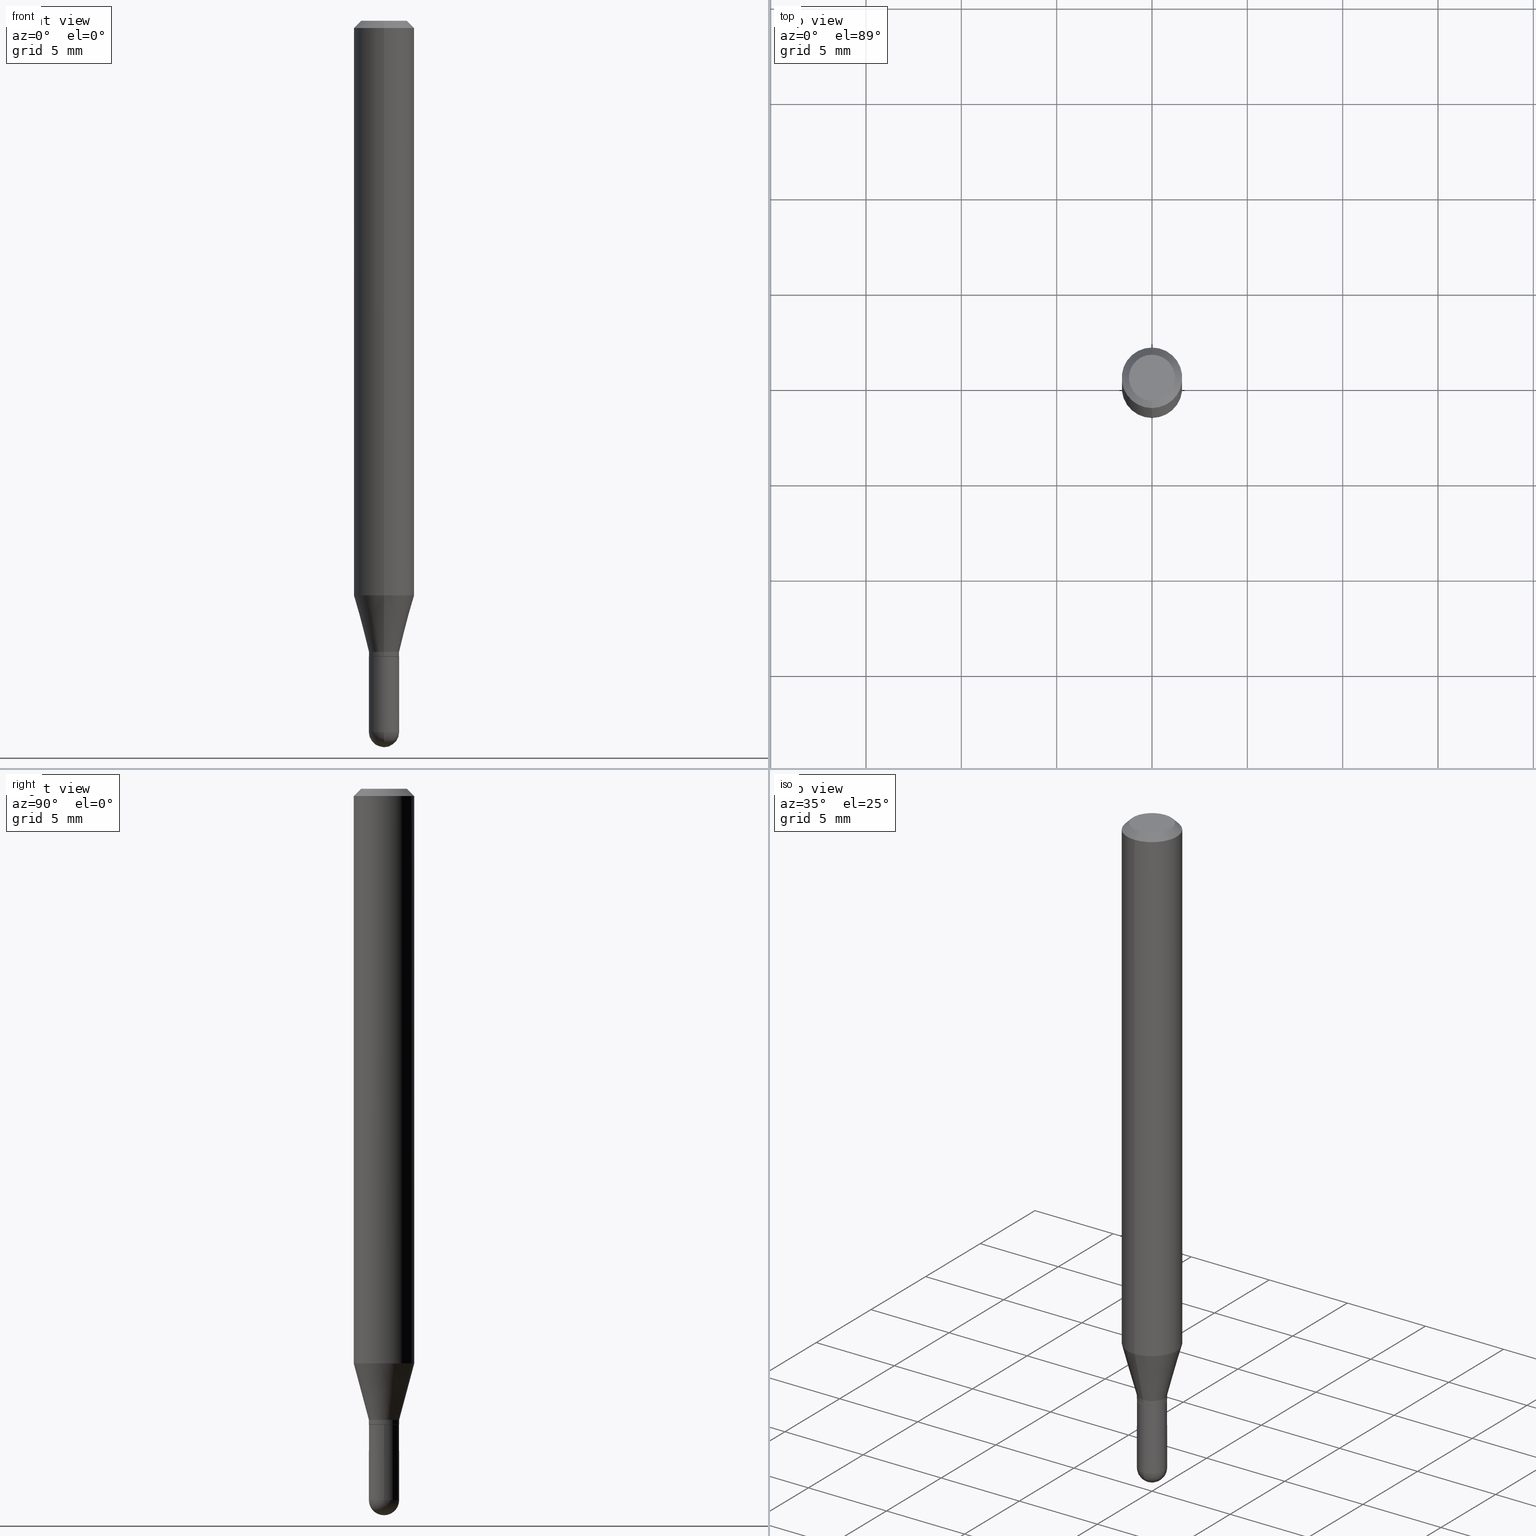
[diagram: canonical four-view strip — front | top / right | iso, engineering-drawing reading convention]
A machine part, canonical four-view strip (front | top / right | iso — engineering-drawing reading convention). The complete STEP part file that produces these views, byte-faithful:
ISO-10303-21;
HEADER;
FILE_DESCRIPTION (( 'STEP AP203' ),
    '1' );
FILE_NAME ('30308.STEP',
    '2024-03-08T15:20:37',
    ( '' ),
    ( '' ),
    'SwSTEP 2.0',
    'SolidWorks 2023',
    '' );
FILE_SCHEMA (( 'CONFIG_CONTROL_DESIGN' ));
ENDSEC;

DATA;
#1 = DIRECTION ( 'NONE',  ( -2.445427662834399299E-29, 3.491540258463135549E-15, 1.000000000000000000 ) ) ;
#2 = ORIENTED_EDGE ( 'NONE', *, *, #138, .T. ) ;
#3 = ADVANCED_FACE ( 'NONE', ( #203 ), #359, .T. ) ;
#4 = CIRCLE ( 'NONE', #437, 0.06250000000000000000 ) ;
#5 = ORIENTED_EDGE ( 'NONE', *, *, #396, .F. ) ;
#6 = FACE_OUTER_BOUND ( 'NONE', #481, .T. ) ;
#7 = ORIENTED_EDGE ( 'NONE', *, *, #31, .T. ) ;
#8 = CALENDAR_DATE ( 2024, 8, 3 ) ;
#9 = EDGE_CURVE ( 'NONE', #464, #53, #207, .T. ) ;
#10 = VERTEX_POINT ( 'NONE', #313 ) ;
#11 = AXIS2_PLACEMENT_3D ( 'NONE', #196, #462, #106 ) ;
#12 = CC_DESIGN_APPROVAL ( #99, ( #250 ) ) ;
#13 = DATE_TIME_ROLE ( 'classification_date' ) ;
#14 = EDGE_CURVE ( 'NONE', #29, #10, #225, .T. ) ;
#15 = ORIENTED_EDGE ( 'NONE', *, *, #91, .T. ) ;
#16 = DIRECTION ( 'NONE',  ( -6.982962677686265922E-15, -1.000000000000000000, 0.000000000000000000 ) ) ;
#17 = ORIENTED_EDGE ( 'NONE', *, *, #403, .F. ) ;
#18 = DIRECTION ( 'NONE',  ( -2.445427662834399299E-29, 3.491540258463135549E-15, 1.000000000000000000 ) ) ;
#19 = CLOSED_SHELL ( 'NONE', ( #247, #22, #280, #82, #283, #215, #357, #3, #169, #362, #241, #408 ) ) ;
#20 = CARTESIAN_POINT ( 'NONE',  ( 3.210900542521084585E-29, -4.584314997901050598E-15, -1.313000000000000167 ) ) ;
#21 = CARTESIAN_POINT ( 'NONE',  ( 3.589109914430733577E-29, -5.131940237673205338E-15, -1.468750000000000000 ) ) ;
#22 = ADVANCED_FACE ( 'NONE', ( #432 ), #436, .T. ) ;
#23 = CARTESIAN_POINT ( 'NONE',  ( 2.202682480856637938E-16, 0.03074999999999541295, -1.313000000000000389 ) ) ;
#24 = SHAPE_DEFINITION_REPRESENTATION ( #243, #114 ) ;
#25 = CARTESIAN_POINT ( 'NONE',  ( -2.182175836776658333E-16, -0.03125000000000488498, -1.312500000000000222 ) ) ;
#26 = APPLICATION_CONTEXT ( 'configuration controlled 3d designs of mechanical parts and assemblies' ) ;
#27 = AXIS2_PLACEMENT_3D ( 'NONE', #433, #273, #239 ) ;
#28 = DIRECTION ( 'NONE',  ( -2.445468806185136597E-29, 3.491481338843145583E-15, 1.000000000000000000 ) ) ;
#29 = VERTEX_POINT ( 'NONE', #151 ) ;
#30 = CARTESIAN_POINT ( 'NONE',  ( 3.840629472727450339E-16, 0.04750000000000004219, -5.999736927781643760E-16 ) ) ;
#31 = EDGE_CURVE ( 'NONE', #53, #464, #47, .T. ) ;
#32 = DIRECTION ( 'NONE',  ( -2.445427662834399299E-29, 3.491540258463135549E-15, 1.000000000000000000 ) ) ;
#33 = APPROVAL_STATUS ( 'not_yet_approved' ) ;
#34 = FACE_OUTER_BOUND ( 'NONE', #216, .T. ) ;
#35 = LINE ( 'NONE', #502, #113 ) ;
#36 = CARTESIAN_POINT ( 'NONE',  ( 0.000000000000000000, 0.000000000000000000, 0.000000000000000000 ) ) ;
#37 = CARTESIAN_POINT ( 'NONE',  ( 2.901190360800337940E-29, -4.142270530488200831E-15, -1.186373412263473703 ) ) ;
#38 = CARTESIAN_POINT ( 'NONE',  ( 1.061622581430208441E-44, -1.515766766971484424E-30, -4.341255305011652876E-16 ) ) ;
#39 = CIRCLE ( 'NONE', #331, 0.03125000000000019429 ) ;
#40 = AXIS2_PLACEMENT_3D ( 'NONE', #104, #407, #16 ) ;
#41 =( NAMED_UNIT ( * ) SI_UNIT ( $, .STERADIAN. ) SOLID_ANGLE_UNIT ( ) );
#42 = FACE_OUTER_BOUND ( 'NONE', #491, .T. ) ;
#43 = PERSON_AND_ORGANIZATION_ROLE ( 'design_owner' ) ;
#44 = DIRECTION ( 'NONE',  ( 7.105427357601001859E-15, 1.000000000000000000, 0.000000000000000000 ) ) ;
#45 = ORIENTED_EDGE ( 'NONE', *, *, #298, .F. ) ;
#46 = ADVANCED_FACE ( 'NONE', ( #42 ), #309, .T. ) ;
#47 = CIRCLE ( 'NONE', #508, 0.06250000000000001388 ) ;
#48 = LOCAL_TIME ( 10, 20, 37.00000000000000000, #364 ) ;
#49 = CC_DESIGN_PERSON_AND_ORGANIZATION_ASSIGNMENT ( #392, #74, ( #149 ) ) ;
#50 = EDGE_LOOP ( 'NONE', ( #17, #242, #171, #321 ) ) ;
#51 = VERTEX_POINT ( 'NONE', #420 ) ;
#52 = AXIS2_PLACEMENT_3D ( 'NONE', #418, #363, #447 ) ;
#53 = VERTEX_POINT ( 'NONE', #382 ) ;
#54 = FACE_OUTER_BOUND ( 'NONE', #136, .T. ) ;
#55 = EDGE_CURVE ( 'NONE', #347, #245, #131, .T. ) ;
#56 = VERTEX_POINT ( 'NONE', #346 ) ;
#57 = DIMENSIONAL_EXPONENTS ( 1.000000000000000000, 0.000000000000000000, 0.000000000000000000, 0.000000000000000000, 0.000000000000000000, 0.000000000000000000, 0.000000000000000000 ) ;
#58 = CARTESIAN_POINT ( 'NONE',  ( 3.591782309084418816E-29, -5.128113216425869865E-15, -1.468750000000000000 ) ) ;
#59 = VECTOR ( 'NONE', #120, 39.37007874015748143 ) ;
#60 = CC_DESIGN_PERSON_AND_ORGANIZATION_ASSIGNMENT ( #487, #170, ( #250 ) ) ;
#61 = CARTESIAN_POINT ( 'NONE',  ( 3.668141494251704677E-31, -5.237310387694854119E-17, -0.01500000000000043313 ) ) ;
#62 = DIRECTION ( 'NONE',  ( -2.445427662834399299E-29, 3.491540258463135549E-15, 1.000000000000000000 ) ) ;
#63 = DIRECTION ( 'NONE',  ( 1.000000000000000000, -6.982962677686266711E-15, 4.876176775795935793E-29 ) ) ;
#64 = ORIENTED_EDGE ( 'NONE', *, *, #210, .F. ) ;
#65 = EDGE_CURVE ( 'NONE', #282, #29, #39, .T. ) ;
#66 = AXIS2_PLACEMENT_3D ( 'NONE', #511, #1, #150 ) ;
#67 = CALENDAR_DATE ( 2024, 8, 3 ) ;
#68 = LOCAL_TIME ( 10, 20, 37.00000000000000000, #199 ) ;
#69 = DIRECTION ( 'NONE',  ( 4.937700262164543309E-15, 0.7071067811865444641, -0.7071067811865505703 ) ) ;
#70 = DIRECTION ( 'NONE',  ( 1.000000000000000000, -6.982962677686261189E-15, 0.000000000000000000 ) ) ;
#71 = DIRECTION ( 'NONE',  ( -6.982962677686265133E-15, -1.000000000000000000, 3.491540258463135155E-15 ) ) ;
#72 = FACE_OUTER_BOUND ( 'NONE', #258, .T. ) ;
#73 = ORIENTED_EDGE ( 'NONE', *, *, #369, .T. ) ;
#74 = PERSON_AND_ORGANIZATION_ROLE ( 'design_supplier' ) ;
#75 = ORIENTED_EDGE ( 'NONE', *, *, #316, .T. ) ;
#76 = CIRCLE ( 'NONE', #211, 0.03125000000000019429 ) ;
#77 = EDGE_CURVE ( 'NONE', #324, #53, #115, .T. ) ;
#78 = ORIENTED_EDGE ( 'NONE', *, *, #206, .F. ) ;
#79 = ORIENTED_EDGE ( 'NONE', *, *, #452, .T. ) ;
#80 = DATE_AND_TIME ( #121, #194 ) ;
#81 = ORIENTED_EDGE ( 'NONE', *, *, #304, .F. ) ;
#82 = ADVANCED_FACE ( 'NONE', ( #315 ), #155, .T. ) ;
#83 = ORIENTED_EDGE ( 'NONE', *, *, #31, .F. ) ;
#84 = AXIS2_PLACEMENT_3D ( 'NONE', #474, #306, #123 ) ;
#85 = DIRECTION ( 'NONE',  ( -6.982962677686265922E-15, -1.000000000000000000, 0.000000000000000000 ) ) ;
#86 = AXIS2_PLACEMENT_3D ( 'NONE', #109, #303, #465 ) ;
#87 = ORIENTED_EDGE ( 'NONE', *, *, #497, .F. ) ;
#88 = APPROVAL_ROLE ( '' ) ;
#89 = CARTESIAN_POINT ( 'NONE',  ( 2.220446049250639965E-16, 0.03124999999999550360, -1.312500000000000222 ) ) ;
#90 = ORIENTED_EDGE ( 'NONE', *, *, #260, .F. ) ;
#91 = EDGE_CURVE ( 'NONE', #51, #287, #308, .T. ) ;
#92 = EDGE_LOOP ( 'NONE', ( #383, #484, #7, #87 ) ) ;
#93 = CARTESIAN_POINT ( 'NONE',  ( 4.440892098500626162E-16, 0.06250000000000001388, -2.182212661539459965E-16 ) ) ;
#94 = CC_DESIGN_APPROVAL ( #105, ( #461 ) ) ;
#95 = DIRECTION ( 'NONE',  ( 1.000000000000000000, -6.982962677686265922E-15, 4.883557194083112901E-29 ) ) ;
#96 = DIRECTION ( 'NONE',  ( -2.445468806185136877E-29, 3.491481338843145188E-15, 1.000000000000000000 ) ) ;
#97 = DIRECTION ( 'NONE',  ( -2.445427662834399299E-29, 3.491540258463135549E-15, 1.000000000000000000 ) ) ;
#98 = VERTEX_POINT ( 'NONE', #386 ) ;
#99 = APPROVAL ( #175, 'UNSPECIFIED' ) ;
#100 = DIRECTION ( 'NONE',  ( 2.445427662834399019E-29, -3.491540258463135549E-15, -1.000000000000000000 ) ) ;
#101 = VECTOR ( 'NONE', #18, 39.37007874015748143 ) ;
#102 = CIRCLE ( 'NONE', #285, 0.03125000000000000000 ) ;
#103 = ORGANIZATION ( 'UNSPECIFIED', 'UNSPECIFIED', '' ) ;
#104 = CARTESIAN_POINT ( 'NONE',  ( 3.209623807470149448E-29, -4.582646589232866148E-15, -1.312500000000000222 ) ) ;
#105 = APPROVAL ( #117, 'UNSPECIFIED' ) ;
#106 = DIRECTION ( 'NONE',  ( -6.982962677686265922E-15, -1.000000000000000000, 0.000000000000000000 ) ) ;
#107 = CARTESIAN_POINT ( 'NONE',  ( 3.668141494251704677E-31, -5.237310387694854119E-17, -0.01500000000000043313 ) ) ;
#108 = CYLINDRICAL_SURFACE ( 'NONE', #159, 0.06250000000000001388 ) ;
#109 = CARTESIAN_POINT ( 'NONE',  ( 3.210846521301567025E-29, -4.584392359362098575E-15, -1.313000000000000389 ) ) ;
#110 = COORDINATED_UNIVERSAL_TIME_OFFSET ( 5, 0, .BEHIND. ) ;
#111 = ORIENTED_EDGE ( 'NONE', *, *, #14, .F. ) ;
#112 = ORIENTED_EDGE ( 'NONE', *, *, #505, .F. ) ;
#113 = VECTOR ( 'NONE', #62, 39.37007874015748143 ) ;
#114 = ADVANCED_BREP_SHAPE_REPRESENTATION ( '30308', ( #337, #507, #186 ), #341 ) ;
#115 = LINE ( 'NONE', #467, #393 ) ;
#116 = FACE_OUTER_BOUND ( 'NONE', #486, .T. ) ;
#117 = APPROVAL_STATUS ( 'not_yet_approved' ) ;
#118 = DIRECTION ( 'NONE',  ( -6.982962677686265922E-15, -1.000000000000000000, 0.000000000000000000 ) ) ;
#119 = ADVANCED_FACE ( 'NONE', ( #34 ), #492, .T. ) ;
#120 = DIRECTION ( 'NONE',  ( -2.445468806185136877E-29, 3.491481338843145188E-15, 1.000000000000000000 ) ) ;
#121 = CALENDAR_DATE ( 2024, 8, 3 ) ;
#122 = DIRECTION ( 'NONE',  ( 1.000000000000000000, -7.105427357601001070E-15, 4.926315508542082329E-29 ) ) ;
#123 = DIRECTION ( 'NONE',  ( -6.982962677686265133E-15, -1.000000000000000000, 3.491540258463135155E-15 ) ) ;
#124 = DIRECTION ( 'NONE',  ( -4.937700262164674260E-15, -0.7071067811865632269, 0.7071067811865319186 ) ) ;
#125 = PLANE ( 'NONE',  #352 ) ;
#126 = EDGE_CURVE ( 'NONE', #10, #464, #146, .T. ) ;
#127 = EDGE_LOOP ( 'NONE', ( #493, #284, #397, #438 ) ) ;
#128 = EDGE_LOOP ( 'NONE', ( #180, #322, #187, #248 ) ) ;
#129 = CARTESIAN_POINT ( 'NONE',  ( 3.186392244673222782E-29, -4.549476956777466596E-15, -1.302999999999999936 ) ) ;
#130 = EDGE_LOOP ( 'NONE', ( #79, #2, #444, #174 ) ) ;
#131 = CIRCLE ( 'NONE', #379, 0.03125000000000000694 ) ;
#132 = LINE ( 'NONE', #445, #398 ) ;
#133 = CIRCLE ( 'NONE', #411, 0.04750000000000004219 ) ;
#134 = VERTEX_POINT ( 'NONE', #139 ) ;
#135 = CARTESIAN_POINT ( 'NONE',  ( 0.03125000000000000694, -5.074431690841155672E-15, -1.468750000000000000 ) ) ;
#136 = EDGE_LOOP ( 'NONE', ( #326, #440 ) ) ;
#137 = ORIENTED_EDGE ( 'NONE', *, *, #55, .F. ) ;
#138 = EDGE_CURVE ( 'NONE', #366, #293, #329, .T. ) ;
#139 = CARTESIAN_POINT ( 'NONE',  ( -2.147261023388205582E-16, -0.03075000000000458270, -1.313000000000000389 ) ) ;
#140 = CC_DESIGN_APPROVAL ( #471, ( #149 ) ) ;
#141 = FACE_OUTER_BOUND ( 'NONE', #50, .T. ) ;
#142 = ORIENTED_EDGE ( 'NONE', *, *, #271, .T. ) ;
#143 = CC_DESIGN_DATE_AND_TIME_ASSIGNMENT ( #424, #312, ( #461 ) ) ;
#144 = ORIENTED_EDGE ( 'NONE', *, *, #224, .T. ) ;
#145 = LINE ( 'NONE', #181, #168 ) ;
#146 = LINE ( 'NONE', #93, #101 ) ;
#147 = EDGE_LOOP ( 'NONE', ( #358, #296, #83, #402 ) ) ;
#148 = AXIS2_PLACEMENT_3D ( 'NONE', #253, #222, #289 ) ;
#149 = PRODUCT_DEFINITION_FORMATION_WITH_SPECIFIED_SOURCE ( 'ANY', '', #480, .NOT_KNOWN. ) ;
#150 = DIRECTION ( 'NONE',  ( -6.982962677686265922E-15, -1.000000000000000000, 3.491540258463135549E-15 ) ) ;
#151 = CARTESIAN_POINT ( 'NONE',  ( 3.330669073875781221E-16, 0.03124999999999564237, -1.302999999999999936 ) ) ;
#152 = DIRECTION ( 'NONE',  ( -6.982962677686265133E-15, -1.000000000000000000, 3.491540258463135155E-15 ) ) ;
#153 = DIRECTION ( 'NONE',  ( -6.982962677686265922E-15, -1.000000000000000000, 4.370956789862821150E-15 ) ) ;
#154 = EDGE_CURVE ( 'NONE', #209, #293, #458, .T. ) ;
#155 = CYLINDRICAL_SURFACE ( 'NONE', #84, 0.06250000000000001388 ) ;
#156 = CARTESIAN_POINT ( 'NONE',  ( 0.000000000000000000, 0.000000000000000000, 0.000000000000000000 ) ) ;
#157 = PERSON_AND_ORGANIZATION ( #189, #103 ) ;
#158 = CARTESIAN_POINT ( 'NONE',  ( 3.210846521301567025E-29, -4.584392359362098575E-15, -1.313000000000000389 ) ) ;
#159 = AXIS2_PLACEMENT_3D ( 'NONE', #226, #413, #152 ) ;
#160 = MECHANICAL_CONTEXT ( 'NONE', #302, 'mechanical' ) ;
#161 = DIRECTION ( 'NONE',  ( -6.982962677686265922E-15, -1.000000000000000000, 4.370956789862821150E-15 ) ) ;
#162 = DIRECTION ( 'NONE',  ( -6.982962677686265922E-15, -1.000000000000000000, 3.483106191921934765E-15 ) ) ;
#163 = CC_DESIGN_PERSON_AND_ORGANIZATION_ASSIGNMENT ( #157, #274, ( #149 ) ) ;
#164 = CARTESIAN_POINT ( 'NONE',  ( 3.589109914430733577E-29, -5.131940237673205338E-15, -1.468750000000000000 ) ) ;
#165 = DIRECTION ( 'NONE',  ( -2.445427662834399299E-29, 3.491540258463135549E-15, 1.000000000000000000 ) ) ;
#166 = CARTESIAN_POINT ( 'NONE',  ( -0.03125000000000000000, 2.220446049250313081E-16, -1.537167215704658057E-30 ) ) ;
#167 = APPLICATION_PROTOCOL_DEFINITION ( 'international standard', 'config_control_design', 1994, #302 ) ;
#168 = VECTOR ( 'NONE', #217, 39.37007874015749564 ) ;
#169 = ADVANCED_FACE ( 'NONE', ( #54 ), #459, .F. ) ;
#170 = PERSON_AND_ORGANIZATION_ROLE ( 'classification_officer' ) ;
#171 = ORIENTED_EDGE ( 'NONE', *, *, #224, .F. ) ;
#172 = ORIENTED_EDGE ( 'NONE', *, *, #206, .T. ) ;
#173 = ORIENTED_EDGE ( 'NONE', *, *, #298, .T. ) ;
#174 = ORIENTED_EDGE ( 'NONE', *, *, #369, .F. ) ;
#175 = APPROVAL_STATUS ( 'not_yet_approved' ) ;
#176 = VECTOR ( 'NONE', #453, 39.37007874015748143 ) ;
#177 = DIRECTION ( 'NONE',  ( -2.445427662834399299E-29, 3.491540258463135549E-15, 1.000000000000000000 ) ) ;
#178 = CONICAL_SURFACE ( 'NONE', #360, 0.03074999999999999956, 0.7853981633974739252 ) ;
#179 = EDGE_CURVE ( 'NONE', #245, #51, #325, .T. ) ;
#180 = ORIENTED_EDGE ( 'NONE', *, *, #327, .F. ) ;
#181 = CARTESIAN_POINT ( 'NONE',  ( -2.182175836776652910E-16, -0.03125000000000474620, -1.302999999999999936 ) ) ;
#182 = ORIENTED_EDGE ( 'NONE', *, *, #304, .T. ) ;
#183 = EDGE_CURVE ( 'NONE', #371, #98, #499, .T. ) ;
#184 = AXIS2_PLACEMENT_3D ( 'NONE', #263, #28, #63 ) ;
#185 = AXIS2_PLACEMENT_3D ( 'NONE', #156, #417, #227 ) ;
#186 = AXIS2_PLACEMENT_3D ( 'NONE', #36, #305, #473 ) ;
#187 = ORIENTED_EDGE ( 'NONE', *, *, #497, .T. ) ;
#188 = PLANE ( 'NONE',  #220 ) ;
#189 = PERSON ( 'UNSPECIFIED', 'UNSPECIFIED', 'UNSPECIFIED', ('UNSPECIFIED'), ('UNSPECIFIED'), ('UNSPECIFIED') ) ;
#190 = DIRECTION ( 'NONE',  ( 1.000000000000000000, -6.982962677686261189E-15, 0.000000000000000000 ) ) ;
#191 = VECTOR ( 'NONE', #501, 39.37007874015747433 ) ;
#192 = CARTESIAN_POINT ( 'NONE',  ( 3.668141494251704677E-31, -5.237310387694854119E-17, -0.01500000000000043313 ) ) ;
#193 = VECTOR ( 'NONE', #328, 39.37007874015748143 ) ;
#194 = LOCAL_TIME ( 10, 20, 37.00000000000000000, #110 ) ;
#195 = CARTESIAN_POINT ( 'NONE',  ( 2.901190360800337940E-29, -4.142270530488200831E-15, -1.186373412263473703 ) ) ;
#196 = CARTESIAN_POINT ( 'NONE',  ( 3.186392244673222782E-29, -4.549476956777466596E-15, -1.302999999999999936 ) ) ;
#197 = DIRECTION ( 'NONE',  ( 1.000000000000000000, -6.982962677686261189E-15, 0.000000000000000000 ) ) ;
#198 = EDGE_LOOP ( 'NONE', ( #448, #264, #15, #173, #78 ) ) ;
#199 = COORDINATED_UNIVERSAL_TIME_OFFSET ( 5, 0, .BEHIND. ) ;
#200 = CARTESIAN_POINT ( 'NONE',  ( 3.210846521301567025E-29, -4.584392359362098575E-15, -1.313000000000000389 ) ) ;
#201 = ADVANCED_FACE ( 'NONE', ( #415 ), #291, .T. ) ;
#202 = PERSON_AND_ORGANIZATION_ROLE ( 'creator' ) ;
#203 = FACE_OUTER_BOUND ( 'NONE', #128, .T. ) ;
#204 =( LENGTH_UNIT ( ) NAMED_UNIT ( * ) SI_UNIT ( $, .METRE. ) );
#205 = CARTESIAN_POINT ( 'NONE',  ( 3.591782309084418816E-29, -5.128113216425869865E-15, -1.468750000000000000 ) ) ;
#206 = EDGE_CURVE ( 'NONE', #400, #412, #102, .T. ) ;
#207 = CIRCLE ( 'NONE', #268, 0.06250000000000001388 ) ;
#208 = VECTOR ( 'NONE', #124, 39.37007874015748143 ) ;
#209 = VERTEX_POINT ( 'NONE', #25 ) ;
#210 = EDGE_CURVE ( 'NONE', #293, #209, #509, .T. ) ;
#211 = AXIS2_PLACEMENT_3D ( 'NONE', #164, #122, #44 ) ;
#212 = AXIS2_PLACEMENT_3D ( 'NONE', #384, #32, #236 ) ;
#213 = CARTESIAN_POINT ( 'NONE',  ( 2.220446049250326886E-16, 0.03125000000000019429, -1.091106330769736638E-16 ) ) ;
#214 = CARTESIAN_POINT ( 'NONE',  ( 1.061622581430208441E-44, -1.515766766971484424E-30, -4.341255305011652876E-16 ) ) ;
#215 = ADVANCED_FACE ( 'NONE', ( #261 ), #290, .T. ) ;
#216 = EDGE_LOOP ( 'NONE', ( #90, #421, #318, #137 ) ) ;
#217 = DIRECTION ( 'NONE',  ( -1.807323732225328562E-15, -0.2588190451025179639, 0.9659258262890689783 ) ) ;
#218 = CARTESIAN_POINT ( 'NONE',  ( 0.000000000000000000, 0.000000000000000000, 0.000000000000000000 ) ) ;
#219 = ORIENTED_EDGE ( 'NONE', *, *, #391, .T. ) ;
#220 = AXIS2_PLACEMENT_3D ( 'NONE', #336, #410, #221 ) ;
#221 = DIRECTION ( 'NONE',  ( -6.982962677686265922E-15, -1.000000000000000000, 3.491540258463135549E-15 ) ) ;
#222 = DIRECTION ( 'NONE',  ( -2.445427662834399299E-29, 3.491540258463135549E-15, 1.000000000000000000 ) ) ;
#223 = DIRECTION ( 'NONE',  ( 1.000000000000000000, -6.982962677686266711E-15, 4.876176775795935793E-29 ) ) ;
#224 = EDGE_CURVE ( 'NONE', #287, #347, #332, .T. ) ;
#225 = LINE ( 'NONE', #343, #191 ) ;
#226 = CARTESIAN_POINT ( 'NONE',  ( 0.000000000000000000, 0.000000000000000000, 0.000000000000000000 ) ) ;
#227 = DIRECTION ( 'NONE',  ( -6.982962677686265922E-15, -1.000000000000000000, 3.491540258463135549E-15 ) ) ;
#228 = DIRECTION ( 'NONE',  ( 2.438088387897960049E-29, -3.491481338843145188E-15, -1.000000000000000000 ) ) ;
#229 = CARTESIAN_POINT ( 'NONE',  ( 3.186392244673222782E-29, -4.549476956777466596E-15, -1.302999999999999936 ) ) ;
#230 = ORIENTED_EDGE ( 'NONE', *, *, #154, .T. ) ;
#231 = CC_DESIGN_PERSON_AND_ORGANIZATION_ASSIGNMENT ( #510, #202, ( #461 ) ) ;
#232 = CYLINDRICAL_SURFACE ( 'NONE', #185, 0.03125000000000019429 ) ;
#233 = PERSON_AND_ORGANIZATION ( #189, #103 ) ;
#234 = CYLINDRICAL_SURFACE ( 'NONE', #66, 0.03125000000000019429 ) ;
#235 = DIRECTION ( 'NONE',  ( 6.982962677686265922E-15, 1.000000000000000000, -3.483106191921934765E-15 ) ) ;
#236 = DIRECTION ( 'NONE',  ( -6.982962677686265922E-15, -1.000000000000000000, 0.000000000000000000 ) ) ;
#237 = DATE_AND_TIME ( #349, #68 ) ;
#238 = DIRECTION ( 'NONE',  ( -6.982962677686265922E-15, -1.000000000000000000, 3.483106191921934765E-15 ) ) ;
#239 = DIRECTION ( 'NONE',  ( 1.000000000000000000, -6.982962677686262766E-15, 0.000000000000000000 ) ) ;
#240 = COORDINATED_UNIVERSAL_TIME_OFFSET ( 5, 0, .BEHIND. ) ;
#241 = ADVANCED_FACE ( 'NONE', ( #275 ), #178, .T. ) ;
#242 = ORIENTED_EDGE ( 'NONE', *, *, #260, .T. ) ;
#243 = PRODUCT_DEFINITION_SHAPE ( 'NONE', 'NONE',  #461 ) ;
#244 = AXIS2_PLACEMENT_3D ( 'NONE', #195, #429, #153 ) ;
#245 = VERTEX_POINT ( 'NONE', #355 ) ;
#246 = ORIENTED_EDGE ( 'NONE', *, *, #505, .T. ) ;
#247 = ADVANCED_FACE ( 'NONE', ( #72 ), #234, .T. ) ;
#248 = ORIENTED_EDGE ( 'NONE', *, *, #9, .T. ) ;
#249 = CIRCLE ( 'NONE', #27, 0.03125000000000000000 ) ;
#250 = SECURITY_CLASSIFICATION ( '', '', #430 ) ;
#251 = EDGE_CURVE ( 'NONE', #324, #10, #4, .T. ) ;
#252 = CARTESIAN_POINT ( 'NONE',  ( 3.589109914430733577E-29, -5.131940237673205338E-15, -1.468750000000000000 ) ) ;
#253 = CARTESIAN_POINT ( 'NONE',  ( 3.186392244673222782E-29, -4.549476956777466596E-15, -1.302999999999999936 ) ) ;
#254 = ORIENTED_EDGE ( 'NONE', *, *, #452, .F. ) ;
#255 = FACE_OUTER_BOUND ( 'NONE', #127, .T. ) ;
#256 = AXIS2_PLACEMENT_3D ( 'NONE', #295, #257, #190 ) ;
#257 = DIRECTION ( 'NONE',  ( -2.445468806185136597E-29, 3.491481338843145583E-15, 1.000000000000000000 ) ) ;
#258 = EDGE_LOOP ( 'NONE', ( #230, #75, #319, #387 ) ) ;
#259 = DATE_AND_TIME ( #67, #425 ) ;
#260 = EDGE_CURVE ( 'NONE', #56, #347, #76, .T. ) ;
#261 = FACE_OUTER_BOUND ( 'NONE', #441, .T. ) ;
#262 = FACE_OUTER_BOUND ( 'NONE', #92, .T. ) ;
#263 = CARTESIAN_POINT ( 'NONE',  ( 0.000000000000000000, 0.000000000000000000, 0.000000000000000000 ) ) ;
#264 = ORIENTED_EDGE ( 'NONE', *, *, #179, .T. ) ;
#265 = CARTESIAN_POINT ( 'NONE',  ( 4.440892098500919026E-16, 0.06249999999999997224, -0.01500000000000065170 ) ) ;
#266 = CALENDAR_DATE ( 2024, 8, 3 ) ;
#267 = DIRECTION ( 'NONE',  ( -6.982962677686265922E-15, -1.000000000000000000, 0.000000000000000000 ) ) ;
#268 = AXIS2_PLACEMENT_3D ( 'NONE', #192, #276, #162 ) ;
#269 = CARTESIAN_POINT ( 'NONE',  ( 3.591782309084418816E-29, -5.128113216425869865E-15, -1.468750000000000000 ) ) ;
#270 = AXIS2_PLACEMENT_3D ( 'NONE', #58, #375, #278 ) ;
#271 = EDGE_CURVE ( 'NONE', #29, #282, #279, .T. ) ;
#272 = DIRECTION ( 'NONE',  ( -6.982962677686265922E-15, -1.000000000000000000, 0.000000000000000000 ) ) ;
#273 = DIRECTION ( 'NONE',  ( -2.445468806185136597E-29, 3.491481338843145583E-15, 1.000000000000000000 ) ) ;
#274 = PERSON_AND_ORGANIZATION_ROLE ( 'creator' ) ;
#275 = FACE_OUTER_BOUND ( 'NONE', #450, .T. ) ;
#276 = DIRECTION ( 'NONE',  ( -2.445427662834399299E-29, 3.491540258463135549E-15, 1.000000000000000000 ) ) ;
#277 = APPROVAL_DATE_TIME ( #80, #105 ) ;
#278 = DIRECTION ( 'NONE',  ( 1.000000000000000000, -6.982962677686261189E-15, 0.000000000000000000 ) ) ;
#279 = CIRCLE ( 'NONE', #11, 0.03125000000000019429 ) ;
#280 = ADVANCED_FACE ( 'NONE', ( #262 ), #490, .T. ) ;
#281 = EDGE_LOOP ( 'NONE', ( #254, #112 ) ) ;
#282 = VERTEX_POINT ( 'NONE', #365 ) ;
#283 = ADVANCED_FACE ( 'NONE', ( #6 ), #340, .T. ) ;
#284 = ORIENTED_EDGE ( 'NONE', *, *, #446, .T. ) ;
#285 = AXIS2_PLACEMENT_3D ( 'NONE', #20, #455, #292 ) ;
#286 = ORIENTED_EDGE ( 'NONE', *, *, #271, .F. ) ;
#287 = VERTEX_POINT ( 'NONE', #135 ) ;
#288 = PERSON_AND_ORGANIZATION ( #189, #103 ) ;
#289 = DIRECTION ( 'NONE',  ( -6.982962677686265922E-15, -1.000000000000000000, 0.000000000000000000 ) ) ;
#290 = CONICAL_SURFACE ( 'NONE', #148, 0.03125000000000019429, 0.2617993877991501295 ) ;
#291 = CYLINDRICAL_SURFACE ( 'NONE', #443, 0.03125000000000000000 ) ;
#292 = DIRECTION ( 'NONE',  ( 1.000000000000000000, -6.982962677686262766E-15, 0.000000000000000000 ) ) ;
#293 = VERTEX_POINT ( 'NONE', #89 ) ;
#294 = LINE ( 'NONE', #339, #476 ) ;
#295 = CARTESIAN_POINT ( 'NONE',  ( 3.591782309084418816E-29, -5.128113216425869865E-15, -1.468750000000000000 ) ) ;
#296 = ORIENTED_EDGE ( 'NONE', *, *, #126, .T. ) ;
#297 = SPHERICAL_SURFACE ( 'NONE', #423, 0.03125000000000019429 ) ;
#298 = EDGE_CURVE ( 'NONE', #287, #412, #132, .T. ) ;
#299 = AXIS2_PLACEMENT_3D ( 'NONE', #342, #97, #500 ) ;
#300 = DESIGN_CONTEXT ( 'detailed design', #26, 'design' ) ;
#301 = ORIENTED_EDGE ( 'NONE', *, *, #396, .T. ) ;
#302 = APPLICATION_CONTEXT ( 'configuration controlled 3d designs of mechanical parts and assemblies' ) ;
#303 = DIRECTION ( 'NONE',  ( -2.445427662834399299E-29, 3.491540258463135549E-15, 1.000000000000000000 ) ) ;
#304 = EDGE_CURVE ( 'NONE', #282, #324, #145, .T. ) ;
#305 = DIRECTION ( 'NONE',  ( 0.000000000000000000, 0.000000000000000000, 1.000000000000000000 ) ) ;
#306 = DIRECTION ( 'NONE',  ( -2.445427662834399299E-29, 3.491540258463135549E-15, 1.000000000000000000 ) ) ;
#307 = LINE ( 'NONE', #422, #485 ) ;
#308 = CIRCLE ( 'NONE', #442, 0.03125000000000000694 ) ;
#309 = CYLINDRICAL_SURFACE ( 'NONE', #184, 0.03125000000000000000 ) ;
#310 = CIRCLE ( 'NONE', #86, 0.03074999999999999956 ) ;
#311 =( CONVERSION_BASED_UNIT ( 'INCH', #350 ) LENGTH_UNIT ( ) NAMED_UNIT ( #57 ) );
#312 = DATE_TIME_ROLE ( 'creation_date' ) ;
#313 = CARTESIAN_POINT ( 'NONE',  ( 4.440892098500914096E-16, 0.06249999999999582279, -1.186373412263473925 ) ) ;
#314 =( NAMED_UNIT ( * ) PLANE_ANGLE_UNIT ( ) SI_UNIT ( $, .RADIAN. ) );
#315 = FACE_OUTER_BOUND ( 'NONE', #147, .T. ) ;
#316 = EDGE_CURVE ( 'NONE', #293, #29, #409, .T. ) ;
#317 = CARTESIAN_POINT ( 'NONE',  ( 3.589109914430733577E-29, -5.131940237673205338E-15, -1.468750000000000000 ) ) ;
#318 = ORIENTED_EDGE ( 'NONE', *, *, #179, .F. ) ;
#319 = ORIENTED_EDGE ( 'NONE', *, *, #65, .F. ) ;
#320 = CC_DESIGN_PERSON_AND_ORGANIZATION_ASSIGNMENT ( #466, #43, ( #480 ) ) ;
#321 = ORIENTED_EDGE ( 'NONE', *, *, #91, .F. ) ;
#322 = ORIENTED_EDGE ( 'NONE', *, *, #183, .F. ) ;
#323 = AXIS2_PLACEMENT_3D ( 'NONE', #21, #95, #451 ) ;
#324 = VERTEX_POINT ( 'NONE', #374 ) ;
#325 = CIRCLE ( 'NONE', #256, 0.03125000000000000694 ) ;
#326 = ORIENTED_EDGE ( 'NONE', *, *, #183, .T. ) ;
#327 = EDGE_CURVE ( 'NONE', #98, #53, #294, .T. ) ;
#328 = DIRECTION ( 'NONE',  ( -2.445427662834399299E-29, 3.491540258463135549E-15, 1.000000000000000000 ) ) ;
#329 = LINE ( 'NONE', #335, #176 ) ;
#330 = ORIENTED_EDGE ( 'NONE', *, *, #210, .T. ) ;
#331 = AXIS2_PLACEMENT_3D ( 'NONE', #229, #356, #504 ) ;
#332 = CIRCLE ( 'NONE', #270, 0.03125000000000000694 ) ;
#333 = DIRECTION ( 'NONE',  ( -2.445468806185136597E-29, 3.491481338843145583E-15, 1.000000000000000000 ) ) ;
#334 = DIRECTION ( 'NONE',  ( 1.000000000000000000, -6.982962677686265922E-15, 4.883557194083112901E-29 ) ) ;
#335 = CARTESIAN_POINT ( 'NONE',  ( 2.184918912462628761E-16, 0.03074999999999541295, -1.313000000000000389 ) ) ;
#336 = CARTESIAN_POINT ( 'NONE',  ( 3.210846521301567025E-29, -4.584392359362098575E-15, -1.313000000000000389 ) ) ;
#337 = MANIFOLD_SOLID_BREP ( 'Body-Move/Copy2[1]', #482 ) ;
#338 = DIRECTION ( 'NONE',  ( -6.982962677686265133E-15, -1.000000000000000000, 3.491540258463135155E-15 ) ) ;
#339 = CARTESIAN_POINT ( 'NONE',  ( -4.287811248607204268E-16, -0.06250000000000006939, -0.01500000000000021629 ) ) ;
#340 = CONICAL_SURFACE ( 'NONE', #405, 0.03125000000000019429, 0.2617993877991501295 ) ;
#341 =( GEOMETRIC_REPRESENTATION_CONTEXT ( 3 ) GLOBAL_UNCERTAINTY_ASSIGNED_CONTEXT ( ( #456 ) ) GLOBAL_UNIT_ASSIGNED_CONTEXT ( ( #311, #314, #41 ) ) REPRESENTATION_CONTEXT ( 'NONE', 'WORKASPACE' ) );
#342 = CARTESIAN_POINT ( 'NONE',  ( 3.209623807470149448E-29, -4.582646589232866148E-15, -1.312500000000000222 ) ) ;
#343 = CARTESIAN_POINT ( 'NONE',  ( 2.220446049250645389E-16, 0.03124999999999564584, -1.302999999999999936 ) ) ;
#344 = ADVANCED_FACE ( 'NONE', ( #141 ), #297, .T. ) ;
#345 = CARTESIAN_POINT ( 'NONE',  ( 0.03125000000000000000, -4.802532581578746433E-15, -1.313000000000000167 ) ) ;
#346 = CARTESIAN_POINT ( 'NONE',  ( 3.664194617297177037E-29, -5.242962540135721781E-15, -1.500000000000000222 ) ) ;
#347 = VERTEX_POINT ( 'NONE', #454 ) ;
#348 = DIRECTION ( 'NONE',  ( -1.000000000000000000, 6.982962677686265922E-15, -4.883557194083112340E-29 ) ) ;
#349 = CALENDAR_DATE ( 2024, 8, 3 ) ;
#350 = LENGTH_MEASURE_WITH_UNIT ( LENGTH_MEASURE( 0.02539999999999999897 ), #204 );
#351 = APPROVAL_ROLE ( '' ) ;
#352 = AXIS2_PLACEMENT_3D ( 'NONE', #354, #228, #378 ) ;
#353 = APPROVAL_PERSON_ORGANIZATION ( #288, #99, #88 ) ;
#354 = CARTESIAN_POINT ( 'NONE',  ( 2.182175836777279315E-16, 0.03124999999999541686, -1.313000000000000167 ) ) ;
#355 = CARTESIAN_POINT ( 'NONE',  ( -0.03125000000000000694, -4.634169502238429318E-15, -1.468750000000000000 ) ) ;
#356 = DIRECTION ( 'NONE',  ( -2.445427662834399299E-29, 3.491540258463135549E-15, 1.000000000000000000 ) ) ;
#357 = ADVANCED_FACE ( 'NONE', ( #255 ), #108, .T. ) ;
#358 = ORIENTED_EDGE ( 'NONE', *, *, #251, .T. ) ;
#359 = CONICAL_SURFACE ( 'NONE', #498, 0.06250000000000001388, 0.7853981633974473908 ) ;
#360 = AXIS2_PLACEMENT_3D ( 'NONE', #158, #431, #267 ) ;
#361 = APPROVAL_PERSON_ORGANIZATION ( #233, #105, #503 ) ;
#362 = ADVANCED_FACE ( 'NONE', ( #377 ), #188, .F. ) ;
#363 = DIRECTION ( 'NONE',  ( 2.445427662834399299E-29, -3.491540258463135549E-15, -1.000000000000000000 ) ) ;
#364 = COORDINATED_UNIVERSAL_TIME_OFFSET ( 5, 0, .BEHIND. ) ;
#365 = CARTESIAN_POINT ( 'NONE',  ( -2.182175836776652910E-16, -0.03125000000000474620, -1.302999999999999936 ) ) ;
#366 = VERTEX_POINT ( 'NONE', #23 ) ;
#367 = AXIS2_PLACEMENT_3D ( 'NONE', #495, #100, #372 ) ;
#368 = DATE_AND_TIME ( #8, #48 ) ;
#369 = EDGE_CURVE ( 'NONE', #134, #209, #496, .T. ) ;
#370 = ORIENTED_EDGE ( 'NONE', *, *, #55, .T. ) ;
#371 = VERTEX_POINT ( 'NONE', #30 ) ;
#372 = DIRECTION ( 'NONE',  ( 6.982962677686265922E-15, 1.000000000000000000, -3.491540258463135549E-15 ) ) ;
#373 = CC_DESIGN_DATE_AND_TIME_ASSIGNMENT ( #368, #13, ( #250 ) ) ;
#374 = CARTESIAN_POINT ( 'NONE',  ( -4.364351673553628267E-16, -0.06250000000000417721, -1.186373412263473259 ) ) ;
#375 = DIRECTION ( 'NONE',  ( -2.445468806185136597E-29, 3.491481338843145583E-15, 1.000000000000000000 ) ) ;
#376 = DIRECTION ( 'NONE',  ( 2.445427662834399299E-29, -3.491540258463135549E-15, -1.000000000000000000 ) ) ;
#377 = FACE_OUTER_BOUND ( 'NONE', #281, .T. ) ;
#378 = DIRECTION ( 'NONE',  ( -1.000000000000000000, 6.982962677686265922E-15, -4.876176775795935793E-29 ) ) ;
#379 = AXIS2_PLACEMENT_3D ( 'NONE', #205, #470, #197 ) ;
#380 = CIRCLE ( 'NONE', #449, 0.03125000000000019429 ) ;
#381 = CC_DESIGN_SECURITY_CLASSIFICATION ( #250, ( #149 ) ) ;
#382 = CARTESIAN_POINT ( 'NONE',  ( -4.364351673553913736E-16, -0.06250000000000006939, -0.01500000000000021629 ) ) ;
#383 = ORIENTED_EDGE ( 'NONE', *, *, #488, .F. ) ;
#384 = CARTESIAN_POINT ( 'NONE',  ( 3.210846521301567025E-29, -4.584392359362098575E-15, -1.313000000000000389 ) ) ;
#385 = APPLICATION_PROTOCOL_DEFINITION ( 'international standard', 'config_control_design', 1994, #26 ) ;
#386 = CARTESIAN_POINT ( 'NONE',  ( -3.773273898774342241E-16, -0.04750000000000004219, -2.682773682241662484E-16 ) ) ;
#387 = ORIENTED_EDGE ( 'NONE', *, *, #419, .F. ) ;
#388 = PERSON_AND_ORGANIZATION ( #189, #103 ) ;
#389 = ORIENTED_EDGE ( 'NONE', *, *, #251, .F. ) ;
#390 = CARTESIAN_POINT ( 'NONE',  ( -0.03125000000000000000, -4.634169502238429318E-15, -1.313000000000000167 ) ) ;
#391 = EDGE_CURVE ( 'NONE', #245, #400, #468, .T. ) ;
#392 = PERSON_AND_ORGANIZATION ( #189, #103 ) ;
#393 = VECTOR ( 'NONE', #165, 39.37007874015748143 ) ;
#394 = ORIENTED_EDGE ( 'NONE', *, *, #446, .F. ) ;
#395 = APPROVAL_PERSON_ORGANIZATION ( #388, #471, #351 ) ;
#396 = EDGE_CURVE ( 'NONE', #412, #400, #249, .T. ) ;
#397 = ORIENTED_EDGE ( 'NONE', *, *, #77, .T. ) ;
#398 = VECTOR ( 'NONE', #96, 39.37007874015748143 ) ;
#399 = ORIENTED_EDGE ( 'NONE', *, *, #14, .T. ) ;
#400 = VERTEX_POINT ( 'NONE', #390 ) ;
#401 = ORIENTED_EDGE ( 'NONE', *, *, #419, .T. ) ;
#402 = ORIENTED_EDGE ( 'NONE', *, *, #77, .F. ) ;
#403 = EDGE_CURVE ( 'NONE', #56, #51, #380, .T. ) ;
#404 = ORIENTED_EDGE ( 'NONE', *, *, #138, .F. ) ;
#405 = AXIS2_PLACEMENT_3D ( 'NONE', #129, #177, #85 ) ;
#406 = CIRCLE ( 'NONE', #212, 0.03074999999999999956 ) ;
#407 = DIRECTION ( 'NONE',  ( -2.445427662834399299E-29, 3.491540258463135549E-15, 1.000000000000000000 ) ) ;
#408 = ADVANCED_FACE ( 'NONE', ( #116 ), #232, .T. ) ;
#409 = LINE ( 'NONE', #213, #193 ) ;
#410 = DIRECTION ( 'NONE',  ( -2.445427662834399019E-29, 3.491540258463135549E-15, 1.000000000000000000 ) ) ;
#411 = AXIS2_PLACEMENT_3D ( 'NONE', #38, #427, #71 ) ;
#412 = VERTEX_POINT ( 'NONE', #345 ) ;
#413 = DIRECTION ( 'NONE',  ( -2.445427662834399299E-29, 3.491540258463135549E-15, 1.000000000000000000 ) ) ;
#414 = APPROVAL_DATE_TIME ( #259, #99 ) ;
#415 = FACE_OUTER_BOUND ( 'NONE', #198, .T. ) ;
#416 = COORDINATED_UNIVERSAL_TIME_OFFSET ( 5, 0, .BEHIND. ) ;
#417 = DIRECTION ( 'NONE',  ( -2.445427662834399299E-29, 3.491540258463135549E-15, 1.000000000000000000 ) ) ;
#418 = CARTESIAN_POINT ( 'NONE',  ( 3.668141494251704677E-31, -5.237310387694854119E-17, -0.01500000000000043313 ) ) ;
#419 = EDGE_CURVE ( 'NONE', #209, #282, #35, .T. ) ;
#420 = CARTESIAN_POINT ( 'NONE',  ( -2.182175836776606071E-16, -0.03125000000000523193, -1.468750000000000000 ) ) ;
#421 = ORIENTED_EDGE ( 'NONE', *, *, #403, .T. ) ;
#422 = CARTESIAN_POINT ( 'NONE',  ( 4.364351673553921131E-16, 0.06249999999999996531, -0.01500000000000065170 ) ) ;
#423 = AXIS2_PLACEMENT_3D ( 'NONE', #252, #334, #494 ) ;
#424 = DATE_AND_TIME ( #266, #477 ) ;
#425 = LOCAL_TIME ( 10, 20, 37.00000000000000000, #416 ) ;
#426 = DIRECTION ( 'NONE',  ( -2.445468806185136597E-29, 3.491481338843145583E-15, 1.000000000000000000 ) ) ;
#427 = DIRECTION ( 'NONE',  ( -2.445427662834399299E-29, 3.491540258463135549E-15, 1.000000000000000000 ) ) ;
#428 = PRODUCT_RELATED_PRODUCT_CATEGORY ( 'detail', '', ( #480 ) ) ;
#429 = DIRECTION ( 'NONE',  ( -2.445427662834399299E-29, 3.491540258463135549E-15, 1.000000000000000000 ) ) ;
#430 = SECURITY_CLASSIFICATION_LEVEL ( 'unclassified' ) ;
#431 = DIRECTION ( 'NONE',  ( -2.445427662834399299E-29, 3.491540258463135549E-15, 1.000000000000000000 ) ) ;
#432 = FACE_OUTER_BOUND ( 'NONE', #130, .T. ) ;
#433 = CARTESIAN_POINT ( 'NONE',  ( 3.210900542521084585E-29, -4.584314997901050598E-15, -1.313000000000000167 ) ) ;
#434 = AXIS2_PLACEMENT_3D ( 'NONE', #200, #472, #118 ) ;
#435 = DIRECTION ( 'NONE',  ( -2.445427662834399299E-29, 3.491540258463135549E-15, 1.000000000000000000 ) ) ;
#436 = CONICAL_SURFACE ( 'NONE', #434, 0.03074999999999999956, 0.7853981633974739252 ) ;
#437 = AXIS2_PLACEMENT_3D ( 'NONE', #37, #435, #161 ) ;
#438 = ORIENTED_EDGE ( 'NONE', *, *, #9, .F. ) ;
#439 = ADVANCED_FACE ( 'NONE', ( #475 ), #125, .F. ) ;
#440 = ORIENTED_EDGE ( 'NONE', *, *, #488, .T. ) ;
#441 = EDGE_LOOP ( 'NONE', ( #111, #142, #182, #394 ) ) ;
#442 = AXIS2_PLACEMENT_3D ( 'NONE', #269, #426, #70 ) ;
#443 = AXIS2_PLACEMENT_3D ( 'NONE', #218, #333, #223 ) ;
#444 = ORIENTED_EDGE ( 'NONE', *, *, #154, .F. ) ;
#445 = CARTESIAN_POINT ( 'NONE',  ( 0.03125000000000000000, -2.182175836776958347E-16, 1.523805242436229935E-30 ) ) ;
#446 = EDGE_CURVE ( 'NONE', #10, #324, #469, .T. ) ;
#447 = DIRECTION ( 'NONE',  ( 6.982962677686265922E-15, 1.000000000000000000, -3.483106191921934765E-15 ) ) ;
#448 = ORIENTED_EDGE ( 'NONE', *, *, #391, .F. ) ;
#449 = AXIS2_PLACEMENT_3D ( 'NONE', #317, #348, #272 ) ;
#450 = EDGE_LOOP ( 'NONE', ( #404, #246, #73, #64 ) ) ;
#451 = DIRECTION ( 'NONE',  ( -6.982962677686265922E-15, -1.000000000000000000, 0.000000000000000000 ) ) ;
#452 = EDGE_CURVE ( 'NONE', #134, #366, #310, .T. ) ;
#453 = DIRECTION ( 'NONE',  ( 5.024295867788190974E-15, 0.7071067811865681119, 0.7071067811865270336 ) ) ;
#454 = CARTESIAN_POINT ( 'NONE',  ( 2.220446049250678915E-16, 0.03124999999999497277, -1.468750000000000000 ) ) ;
#455 = DIRECTION ( 'NONE',  ( -2.445468806185136597E-29, 3.491481338843145583E-15, 1.000000000000000000 ) ) ;
#456 = UNCERTAINTY_MEASURE_WITH_UNIT (LENGTH_MEASURE( 1.000000000000000082E-05 ), #311, 'distance_accuracy_value', 'NONE');
#457 = ORIENTED_EDGE ( 'NONE', *, *, #65, .T. ) ;
#458 = CIRCLE ( 'NONE', #40, 0.03125000000000019429 ) ;
#459 = PLANE ( 'NONE',  #367 ) ;
#460 = DIRECTION ( 'NONE',  ( -4.851104656540959542E-15, -0.7071067811865493491, -0.7071067811865456854 ) ) ;
#461 = PRODUCT_DEFINITION ( 'UNKNOWN', '', #149, #300 ) ;
#462 = DIRECTION ( 'NONE',  ( -2.445427662834399299E-29, 3.491540258463135549E-15, 1.000000000000000000 ) ) ;
#463 = DIRECTION ( 'NONE',  ( -2.445427662834399299E-29, 3.491540258463135549E-15, 1.000000000000000000 ) ) ;
#464 = VERTEX_POINT ( 'NONE', #265 ) ;
#465 = DIRECTION ( 'NONE',  ( -6.982962677686265922E-15, -1.000000000000000000, 0.000000000000000000 ) ) ;
#466 = PERSON_AND_ORGANIZATION ( #189, #103 ) ;
#467 = CARTESIAN_POINT ( 'NONE',  ( -4.364351673553916694E-16, -0.06250000000000001388, 2.182212661539459965E-16 ) ) ;
#468 = LINE ( 'NONE', #166, #59 ) ;
#469 = CIRCLE ( 'NONE', #244, 0.06250000000000000000 ) ;
#470 = DIRECTION ( 'NONE',  ( -2.445468806185136597E-29, 3.491481338843145583E-15, 1.000000000000000000 ) ) ;
#471 = APPROVAL ( #33, 'UNSPECIFIED' ) ;
#472 = DIRECTION ( 'NONE',  ( -2.445427662834399299E-29, 3.491540258463135549E-15, 1.000000000000000000 ) ) ;
#473 = DIRECTION ( 'NONE',  ( 1.000000000000000000, 0.000000000000000000, 0.000000000000000000 ) ) ;
#474 = CARTESIAN_POINT ( 'NONE',  ( 0.000000000000000000, 0.000000000000000000, 0.000000000000000000 ) ) ;
#475 = FACE_OUTER_BOUND ( 'NONE', #479, .T. ) ;
#476 = VECTOR ( 'NONE', #460, 39.37007874015748143 ) ;
#477 = LOCAL_TIME ( 10, 20, 37.00000000000000000, #240 ) ;
#478 = ORIENTED_EDGE ( 'NONE', *, *, #316, .F. ) ;
#479 = EDGE_LOOP ( 'NONE', ( #301, #172 ) ) ;
#480 = PRODUCT ( '30308', '30308', '', ( #160 ) ) ;
#481 = EDGE_LOOP ( 'NONE', ( #457, #399, #389, #81 ) ) ;
#482 = CLOSED_SHELL ( 'NONE', ( #46, #344, #439, #119, #201 ) ) ;
#483 = AXIS2_PLACEMENT_3D ( 'NONE', #214, #489, #338 ) ;
#484 = ORIENTED_EDGE ( 'NONE', *, *, #327, .T. ) ;
#485 = VECTOR ( 'NONE', #69, 39.37007874015748143 ) ;
#486 = EDGE_LOOP ( 'NONE', ( #478, #330, #401, #286 ) ) ;
#487 = PERSON_AND_ORGANIZATION ( #189, #103 ) ;
#488 = EDGE_CURVE ( 'NONE', #98, #371, #133, .T. ) ;
#489 = DIRECTION ( 'NONE',  ( -2.445427662834399299E-29, 3.491540258463135549E-15, 1.000000000000000000 ) ) ;
#490 = CONICAL_SURFACE ( 'NONE', #52, 0.06250000000000001388, 0.7853981633974473908 ) ;
#491 = EDGE_LOOP ( 'NONE', ( #370, #219, #5, #45, #144 ) ) ;
#492 = SPHERICAL_SURFACE ( 'NONE', #323, 0.03125000000000019429 ) ;
#493 = ORIENTED_EDGE ( 'NONE', *, *, #126, .F. ) ;
#494 = DIRECTION ( 'NONE',  ( -6.982962677686265922E-15, -1.000000000000000000, 0.000000000000000000 ) ) ;
#495 = CARTESIAN_POINT ( 'NONE',  ( 3.316907271900979054E-16, 0.04750000000000004219, -3.829109275275817569E-16 ) ) ;
#496 = LINE ( 'NONE', #512, #208 ) ;
#497 = EDGE_CURVE ( 'NONE', #371, #464, #307, .T. ) ;
#498 = AXIS2_PLACEMENT_3D ( 'NONE', #61, #376, #235 ) ;
#499 = CIRCLE ( 'NONE', #483, 0.04750000000000004219 ) ;
#500 = DIRECTION ( 'NONE',  ( -6.982962677686265922E-15, -1.000000000000000000, 0.000000000000000000 ) ) ;
#501 = DIRECTION ( 'NONE',  ( 1.839019923739599526E-15, 0.2588190451025248473, 0.9659258262890673130 ) ) ;
#502 = CARTESIAN_POINT ( 'NONE',  ( -2.182175836776971659E-16, -0.03125000000000019429, 1.091106330769736638E-16 ) ) ;
#503 = APPROVAL_ROLE ( '' ) ;
#504 = DIRECTION ( 'NONE',  ( -6.982962677686265922E-15, -1.000000000000000000, 0.000000000000000000 ) ) ;
#505 = EDGE_CURVE ( 'NONE', #366, #134, #406, .T. ) ;
#506 = APPROVAL_DATE_TIME ( #237, #471 ) ;
#507 = MANIFOLD_SOLID_BREP ( 'Body-Move/Copy2[2]', #19 ) ;
#508 = AXIS2_PLACEMENT_3D ( 'NONE', #107, #463, #238 ) ;
#509 = CIRCLE ( 'NONE', #299, 0.03125000000000019429 ) ;
#510 = PERSON_AND_ORGANIZATION ( #189, #103 ) ;
#511 = CARTESIAN_POINT ( 'NONE',  ( 0.000000000000000000, 0.000000000000000000, 0.000000000000000000 ) ) ;
#512 = CARTESIAN_POINT ( 'NONE',  ( -2.147261023388205582E-16, -0.03075000000000458270, -1.313000000000000389 ) ) ;
ENDSEC;
END-ISO-10303-21;
